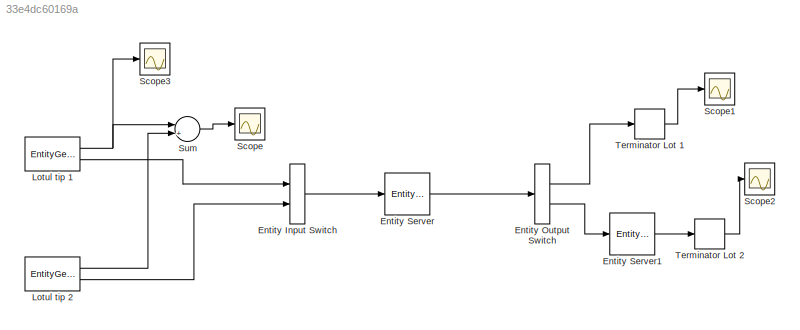
MODEL slx_33e4dc60169a
KIND model
CONFIG AbsTol = auto
CONFIG FixedStep = auto
CONFIG MaxStep = auto
CONFIG MinStep = auto
CONFIG RelTol = 1e-3
CONFIG SampleTimeConstraint = Unconstrained
CONFIG Solver = VariableStepDiscrete
CONFIG SolverMode = Auto
CONFIG SolverName = VariableStepDiscrete
CONFIG StartTime = 0.0
CONFIG StopTime = 480
BLOCK [EntityInputSwitch] Entity Input Switch
  InputPortMap = u1,u2
  InputPortMessageModes = m,m
  OutputPortMap = o0
  OutputPortMessageModes = m
  Ports = [2, 1]
BLOCK [EntityOutputSwitch] Entity Output Switch
  InputPortMap = u1
  InputPortMessageModes = m
  OutputPortMap = o0,o1
  OutputPortMessageModes = m,m
  Ports = [1, 2]
  SwitchAttributeName = TipLot
  SwitchingCriterion = From attribute
BLOCK [EntityServer] Entity Server
  Capacity = 1
  InputPortMap = u2
  InputPortMessageModes = m
  OutputPortMap = o9
  OutputPortMessageModes = m
  Ports = [1, 1]
  ServiceTimeAction = persistent init\nif (isempty(init))\n    rng(774);\n    init = true;\nend;\ndt = 14 + 8 * rand;
  ServiceTimeSource = MATLAB action
BLOCK [EntityServer] Entity Server1
  Capacity = 1
  InputPortMap = u2
  InputPortMessageModes = m
  OutputPortMap = o9
  OutputPortMessageModes = m
  Ports = [1, 1]
  ServiceTimeAction = persistent init\nif (isempty(init))\n    rng(775);\n    init = true;\nend;\ndt = 8 + 4 * rand;
  ServiceTimeSource = MATLAB action
BLOCK [EntityGenerator] Lotul tip 1
  AttributeName = TipLot
  EntityType = Structured
  EntityTypeName = Entity
  IntergenerationTimeAction = persistent init\nif (isempty(init))\n    rng(113);\n    init = true;\nend\ndt = 25 + 20 * rand;
  NumberEntitiesDeparted = on
  OutputPortMap = o0,o3
  OutputPortMessageModes = n,m
  Ports = [0, 2]
  TimeSource = MATLAB action
BLOCK [EntityGenerator] Lotul tip 2
  AttributeInitialValue = 2
  AttributeName = TipLot
  EntityType = Structured
  EntityTypeName = Entity
  IntergenerationTimeAction = persistent init\nif (isempty(init))\n    rng(114);\n    init = true;\nend\ndt = 38 + 14 * rand;
  NumberEntitiesDeparted = on
  OutputPortMap = o0,o3
  OutputPortMessageModes = n,m
  Ports = [0, 2]
  TimeSource = MATLAB action
BLOCK [Scope] Scope
  Ports = [1]
  ScopeSpecificationString = Simulink.scopes.TimeScopeBlockCfg('CurrentConfiguration', extmgr.ConfigurationSet(extmgr.Configuration('Core','General UI',true),extmgr.Configuration('Core','Source UI',true),extmgr.Configuration('Sources','WiredSimulink',true),extmgr.Configuration('Visuals','Time Domain',true,'SerializedDisplays',{struct('MinYLimReal','-1.625','MaxYLimReal','24.625','YLabelReal','','MinYLimMag','0.00000','MaxYLim...<+1340ch>
BLOCK [Scope] Scope1
  Ports = [1]
  ScopeSpecificationString = Simulink.scopes.TimeScopeBlockCfg('CurrentConfiguration', extmgr.ConfigurationSet(extmgr.Configuration('Core','General UI',true),extmgr.Configuration('Core','Source UI',true),extmgr.Configuration('Sources','WiredSimulink',true,'DataLoggingVariableName','ScopeData1'),extmgr.Configuration('Visuals','Time Domain',true,'SerializedDisplays',{struct('MinYLimReal','-0.25','MaxYLimReal','12.25','YLabelRea...<+1362ch>
BLOCK [Scope] Scope2
  Ports = [1]
  ScopeSpecificationString = Simulink.scopes.TimeScopeBlockCfg('CurrentConfiguration', extmgr.ConfigurationSet(extmgr.Configuration('Core','General UI',true),extmgr.Configuration('Core','Source UI',true),extmgr.Configuration('Sources','WiredSimulink',true,'DataLoggingVariableName','ScopeData2'),extmgr.Configuration('Visuals','Time Domain',true,'SerializedDisplays',{struct('MinYLimReal','0.00000','MaxYLimReal','10.00000','YLab...<+1377ch>
BLOCK [Scope] Scope3
  Ports = [1]
  ScopeSpecificationString = Simulink.scopes.TimeScopeBlockCfg('CurrentConfiguration', extmgr.ConfigurationSet(extmgr.Configuration('Core','General UI',true),extmgr.Configuration('Core','Source UI',true),extmgr.Configuration('Sources','WiredSimulink',true,'DataLoggingVariableName','ScopeData3'),extmgr.Configuration('Visuals','Time Domain',true,'SerializedDisplays',{struct('MinYLimReal','-0.375','MaxYLimReal','13.375','YLabelR...<+1389ch>
BLOCK [Sum] Sum
  InputSameDT = off
  Inputs = |++
  OutDataTypeStr = Inherit: Inherit via internal rule
  Ports = [2, 1]
  SaturateOnIntegerOverflow = off
BLOCK [EntityTerminator] Terminator Lot 1
  InputPortMap = u0
  InputPortMessageModes = m
  NumberEntitiesArrived = on
  OutputPortMap = o0
  Ports = [1, 1]
BLOCK [EntityTerminator] Terminator Lot 2
  InputPortMap = u0
  InputPortMessageModes = m
  NumberEntitiesArrived = on
  OutputPortMap = o0
  Ports = [1, 1]
LINE Entity Input Switch:1 -> Entity Server:1
LINE Entity Output Switch:1 -> Terminator Lot 1:1
LINE Entity Output Switch:2 -> Entity Server1:1
LINE Entity Server1:1 -> Terminator Lot 2:1
LINE Entity Server:1 -> Entity Output Switch:1
NET Lotul tip 1:1 -> Scope3:1, Sum:1
LINE Lotul tip 1:2 -> Entity Input Switch:1
LINE Lotul tip 2:1 -> Sum:2
LINE Lotul tip 2:2 -> Entity Input Switch:2
LINE Sum:1 -> Scope:1
LINE Terminator Lot 1:1 -> Scope1:1
LINE Terminator Lot 2:1 -> Scope2:1
note: NET lines group one-source signal fan-out (src -> all destinations, sorted); 1:1 wires keep LINE
